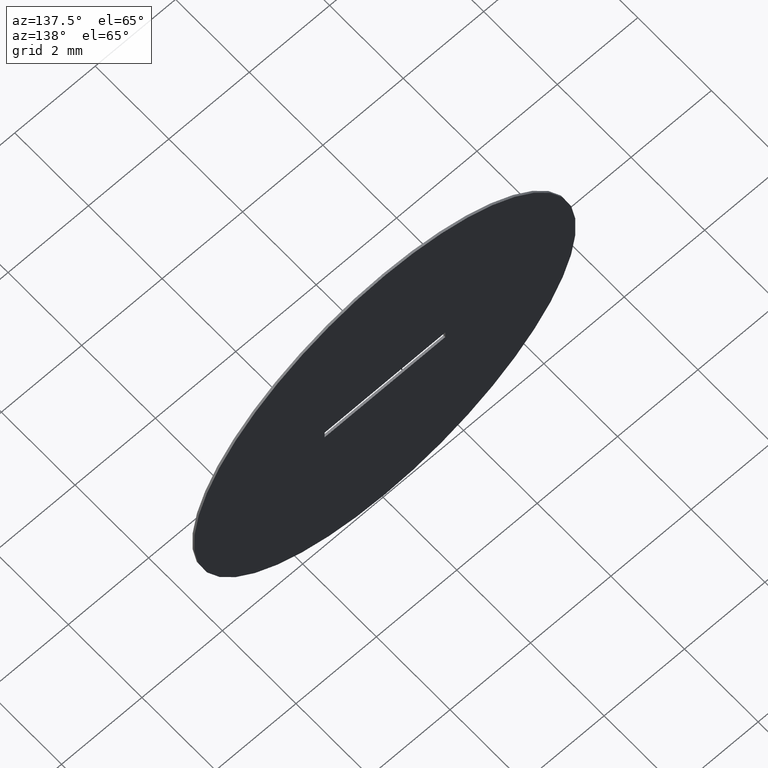
[diagram: clean part render]
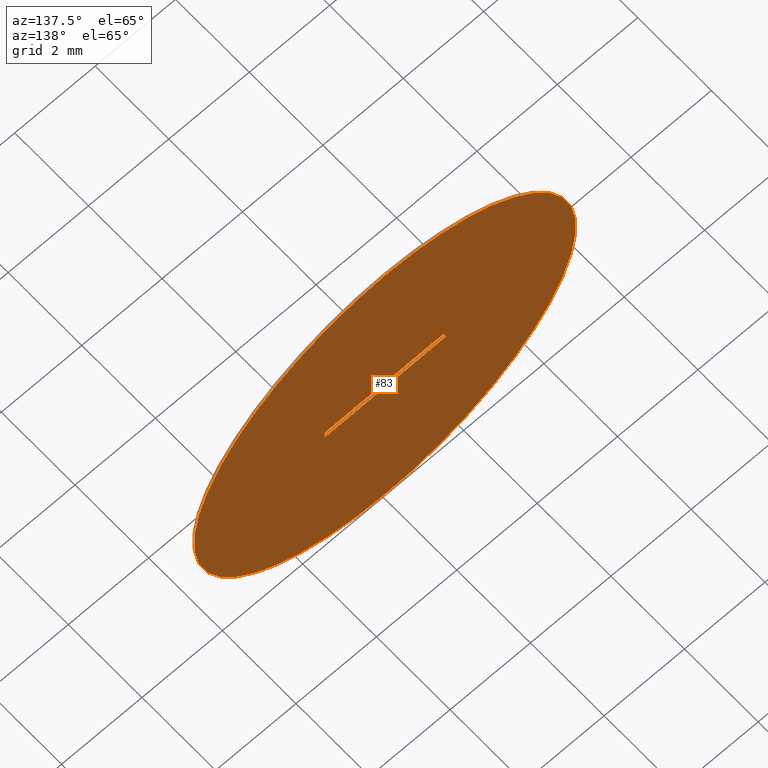
[diagram: same view with one face highlighted and labeled with its STEP entity id]
A machine part, auxiliary view. The second image highlights one B-rep face of the part: STEP entity #83.
In plain terms, the highlighted planar face has unit normal (0, 1, 0).
Its self-contained STEP definition (entity closure, byte-faithful):
#1 = VERTEX_POINT ( 'NONE', #136 ) ;
#2 = VECTOR ( 'NONE', #296, 1000.000000000000000 ) ;
#4 = DIRECTION ( 'NONE',  ( 0.000000000000000000, 0.000000000000000000, 1.000000000000000000 ) ) ;
#10 = PLANE ( 'NONE',  #181 ) ;
#18 = CARTESIAN_POINT ( 'NONE',  ( -1.499999999999999778, 0.05000000000000000278, -0.09999999999999999167 ) ) ;
#21 = VERTEX_POINT ( 'NONE', #62 ) ;
#30 = CARTESIAN_POINT ( 'NONE',  ( 0.000000000000000000, 0.05000000000000000278, 0.000000000000000000 ) ) ;
#34 = EDGE_CURVE ( 'NONE', #202, #1, #206, .T. ) ;
#36 = DIRECTION ( 'NONE',  ( 0.000000000000000000, -0.000000000000000000, 1.000000000000000000 ) ) ;
#37 = CIRCLE ( 'NONE', #201, 4.750000000000000000 ) ;
#38 = CARTESIAN_POINT ( 'NONE',  ( 1.500000000000000222, 0.05000000000000000278, -0.09999999999999999167 ) ) ;
#42 = AXIS2_PLACEMENT_3D ( 'NONE', #30, #141, #56 ) ;
#46 = CIRCLE ( 'NONE', #42, 4.750000000000000000 ) ;
#48 = ORIENTED_EDGE ( 'NONE', *, *, #219, .T. ) ;
#50 = EDGE_CURVE ( 'NONE', #204, #260, #168, .T. ) ;
#56 = DIRECTION ( 'NONE',  ( 0.000000000000000000, 0.000000000000000000, 1.000000000000000000 ) ) ;
#58 = DIRECTION ( 'NONE',  ( 1.000000000000000000, 0.000000000000000000, 0.000000000000000000 ) ) ;
#59 = CARTESIAN_POINT ( 'NONE',  ( 0.000000000000000000, 0.05000000000000000278, 0.000000000000000000 ) ) ;
#62 = CARTESIAN_POINT ( 'NONE',  ( 0.000000000000000000, 0.05000000000000000278, -4.750000000000000000 ) ) ;
#63 = LINE ( 'NONE', #187, #223 ) ;
#67 = DIRECTION ( 'NONE',  ( 0.000000000000000000, 0.000000000000000000, 1.000000000000000000 ) ) ;
#72 = CARTESIAN_POINT ( 'NONE',  ( 1.500000000000000222, 0.05000000000000000278, 0.1000000000000000194 ) ) ;
#74 = ORIENTED_EDGE ( 'NONE', *, *, #113, .T. ) ;
#82 = EDGE_LOOP ( 'NONE', ( #261, #158, #290, #286 ) ) ;
#83 = ADVANCED_FACE ( 'NONE', ( #247, #246 ), #10, .T. ) ;
#99 = EDGE_CURVE ( 'NONE', #1, #204, #143, .T. ) ;
#113 = EDGE_CURVE ( 'NONE', #259, #21, #46, .T. ) ;
#136 = CARTESIAN_POINT ( 'NONE',  ( 1.500000000000000222, 0.05000000000000000278, -0.09999999999999999167 ) ) ;
#141 = DIRECTION ( 'NONE',  ( 0.000000000000000000, 1.000000000000000000, 0.000000000000000000 ) ) ;
#143 = LINE ( 'NONE', #185, #248 ) ;
#145 = CARTESIAN_POINT ( 'NONE',  ( -1.499999999999999778, 0.05000000000000000278, -0.09999999999999999167 ) ) ;
#158 = ORIENTED_EDGE ( 'NONE', *, *, #34, .F. ) ;
#168 = LINE ( 'NONE', #145, #237 ) ;
#171 = CARTESIAN_POINT ( 'NONE',  ( 0.000000000000000000, 0.05000000000000000278, 0.000000000000000000 ) ) ;
#174 = EDGE_CURVE ( 'NONE', #260, #202, #63, .T. ) ;
#181 = AXIS2_PLACEMENT_3D ( 'NONE', #59, #205, #36 ) ;
#185 = CARTESIAN_POINT ( 'NONE',  ( -1.499999999999999778, 0.05000000000000000278, -0.09999999999999999167 ) ) ;
#187 = CARTESIAN_POINT ( 'NONE',  ( -1.499999999999999778, 0.05000000000000000278, 0.1000000000000000194 ) ) ;
#201 = AXIS2_PLACEMENT_3D ( 'NONE', #171, #210, #67 ) ;
#202 = VERTEX_POINT ( 'NONE', #72 ) ;
#204 = VERTEX_POINT ( 'NONE', #18 ) ;
#205 = DIRECTION ( 'NONE',  ( 0.000000000000000000, 1.000000000000000000, 0.000000000000000000 ) ) ;
#206 = LINE ( 'NONE', #38, #2 ) ;
#210 = DIRECTION ( 'NONE',  ( 0.000000000000000000, 1.000000000000000000, 0.000000000000000000 ) ) ;
#219 = EDGE_CURVE ( 'NONE', #21, #259, #37, .T. ) ;
#223 = VECTOR ( 'NONE', #58, 1000.000000000000000 ) ;
#237 = VECTOR ( 'NONE', #4, 1000.000000000000000 ) ;
#241 = EDGE_LOOP ( 'NONE', ( #48, #74 ) ) ;
#246 = FACE_BOUND ( 'NONE', #82, .T. ) ;
#247 = FACE_OUTER_BOUND ( 'NONE', #241, .T. ) ;
#248 = VECTOR ( 'NONE', #264, 1000.000000000000000 ) ;
#259 = VERTEX_POINT ( 'NONE', #274 ) ;
#260 = VERTEX_POINT ( 'NONE', #277 ) ;
#261 = ORIENTED_EDGE ( 'NONE', *, *, #99, .F. ) ;
#264 = DIRECTION ( 'NONE',  ( -1.000000000000000000, -0.000000000000000000, -0.000000000000000000 ) ) ;
#274 = CARTESIAN_POINT ( 'NONE',  ( 5.817072295949927426E-16, 0.05000000000000000278, 4.750000000000000000 ) ) ;
#277 = CARTESIAN_POINT ( 'NONE',  ( -1.499999999999999778, 0.05000000000000000278, 0.1000000000000000194 ) ) ;
#286 = ORIENTED_EDGE ( 'NONE', *, *, #50, .F. ) ;
#290 = ORIENTED_EDGE ( 'NONE', *, *, #174, .F. ) ;
#296 = DIRECTION ( 'NONE',  ( -0.000000000000000000, -0.000000000000000000, -1.000000000000000000 ) ) ;